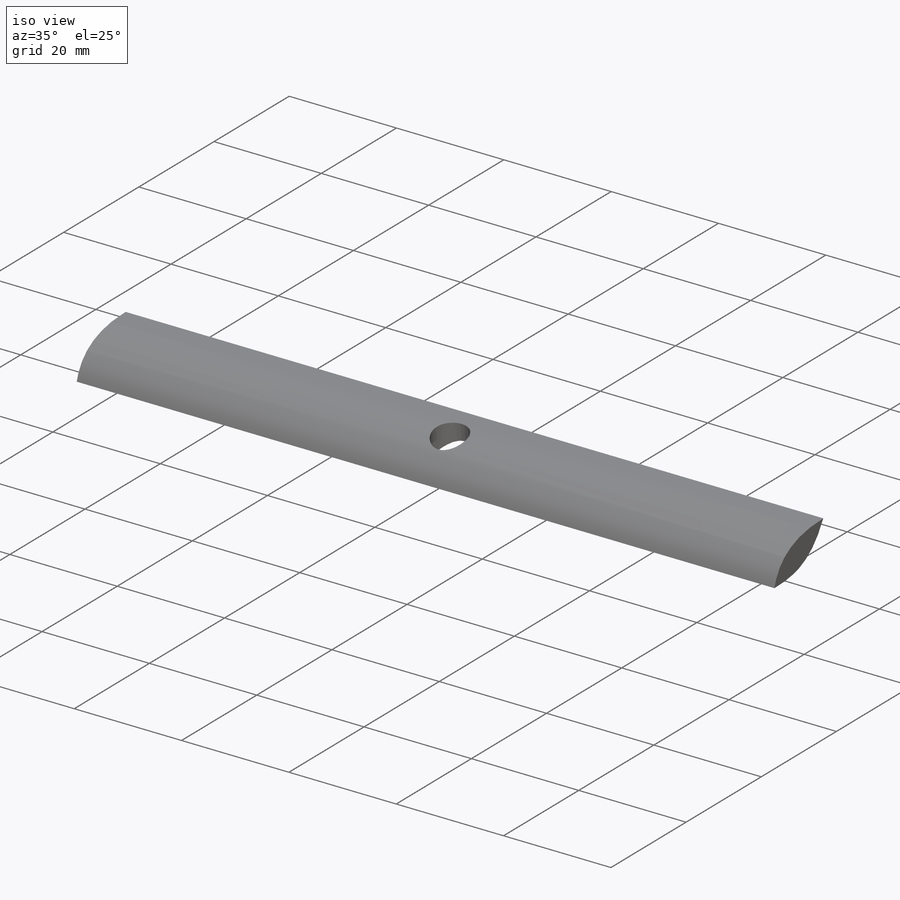
[diagram: iso view]
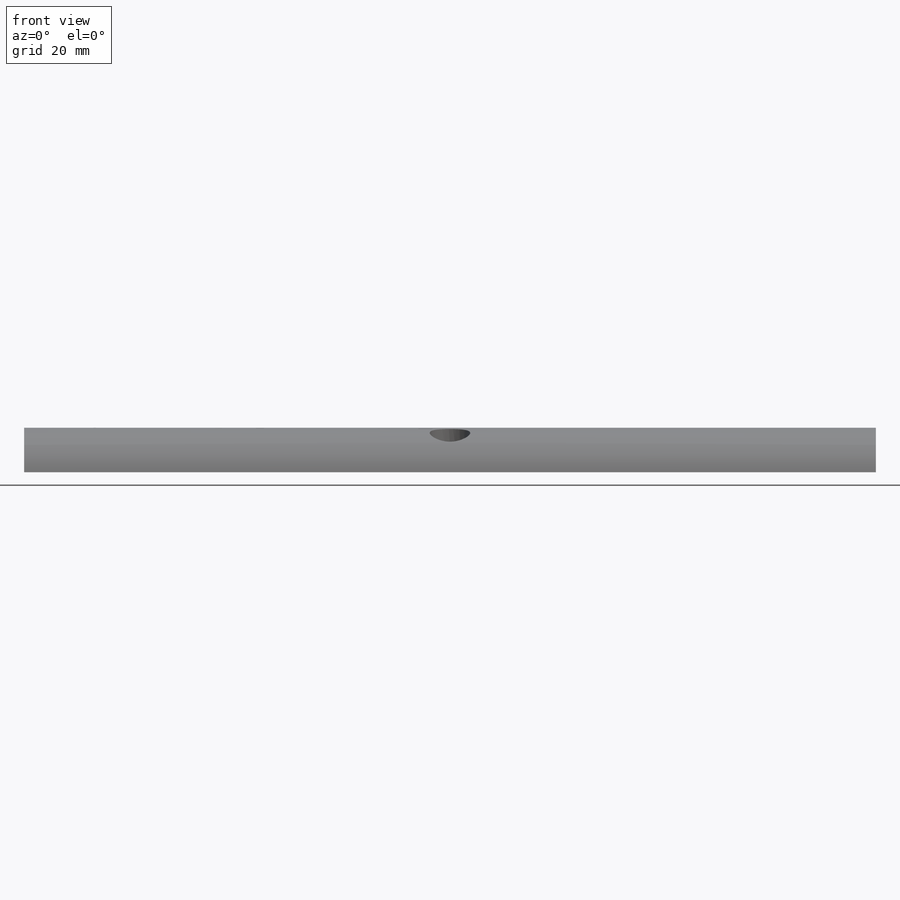
[diagram: front view]
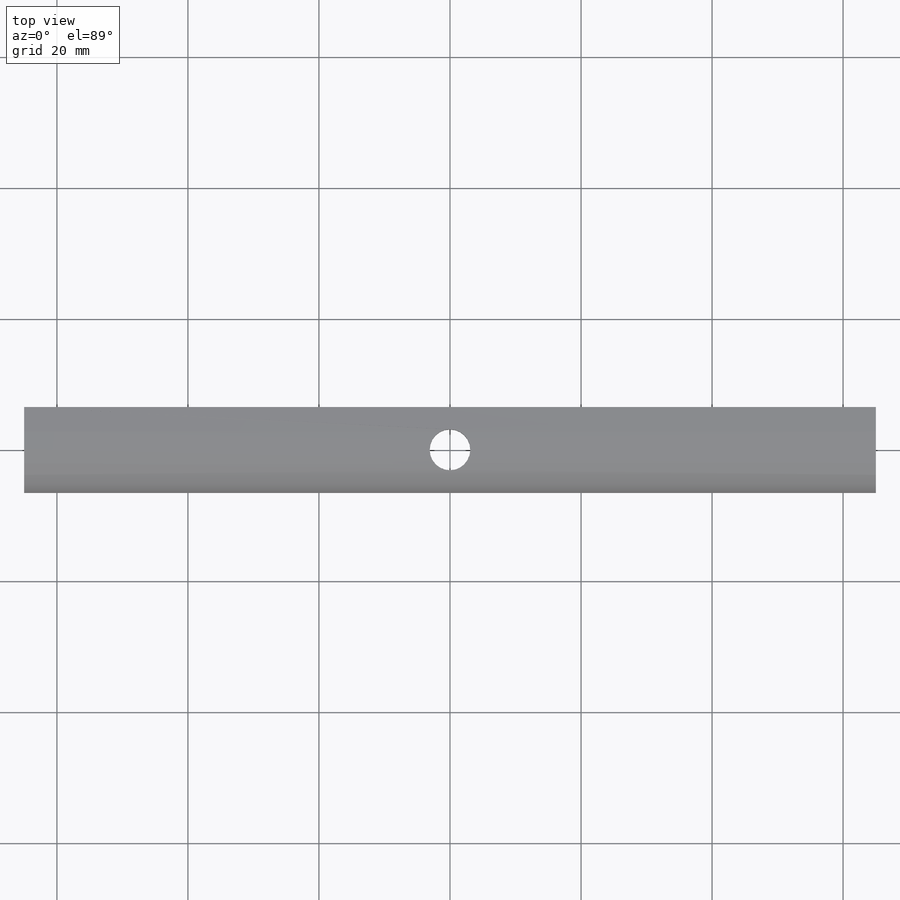
[diagram: top view]
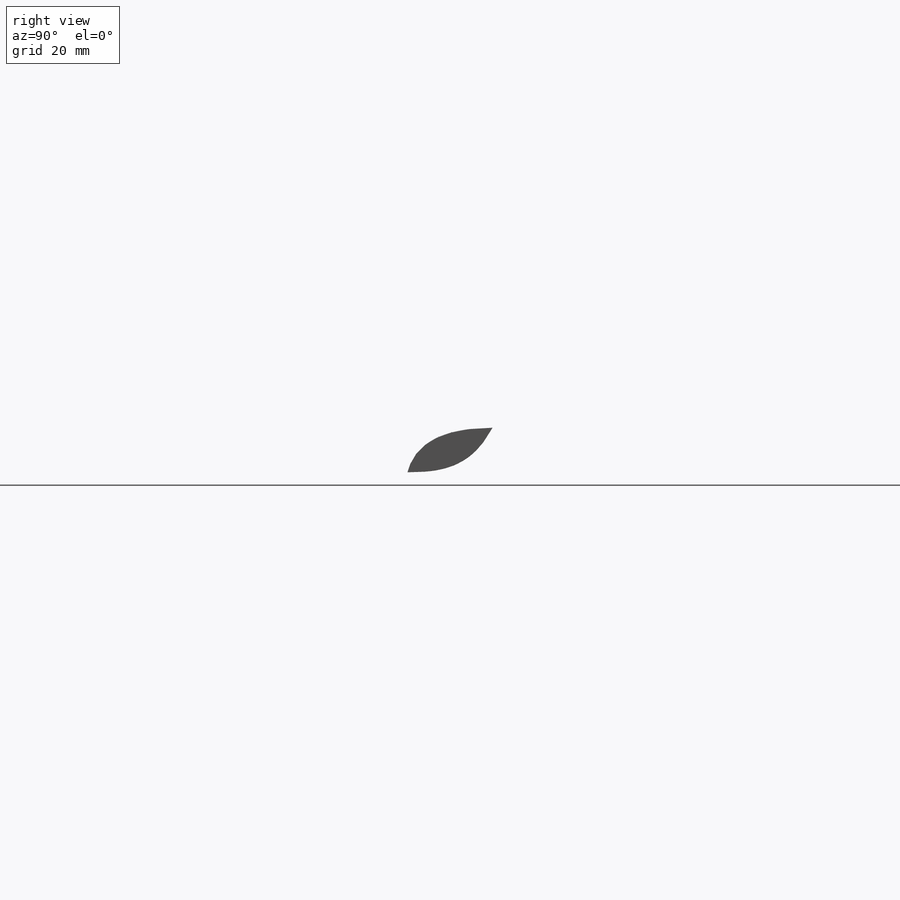
[diagram: right view]
SOLIDWORKS PART (.sldprt)
format: sldprt  version: not decoded by parser v0  size: 181,248 bytes
history: native  units: mm
features: sketch x5, plane x3, cut_extrude x3, extrude x2, material x1 (+13 scaffold rows collapsed)
feature tree (27):
  scaffold x13  (default folders/planes/origin — collapsed)
  material  "Matériau <non spécifié>"
  plane  "Plan de face"
  plane  "Plan de dessus"
  plane  "Plan de droite"
  sketch  "Esquisse1"  dims[D1=~11.888481mm]
  extrude  "Boss.-Extru.1"  Depth=6.8mm
  sketch  "Esquisse4"  dims[D1=130.0mm D2=13.0mm D3=65.0mm D4=6.5mm]
  extrude  "Boss.-Extru.4"  Depth=6.8mm
  sketch  "Esquisse2"  dims[c1.D1=6.2mm c1.D2=6.2mm c2.D1=6.2mm c2.D2=69.0mm c3.D1=61.0mm c3.D2=69.0mm]
  cut_extrude  "Enlèv. mat.-Extru.1"  Depth=3.9mm
  sketch  "Esquisse3"  dims[D1=8.0mm]
  cut_extrude  "Enlèv. mat.-Extru.2"  Depth=3.9mm
  sketch  "Esquisse5"
  cut_extrude  "Enlèv. mat.-Extru.3"  Depth=150mm
decode coverage: 9 of 10 modeling features carry decoded parameters
note: ~ marks probable driven/reference dimensions
note: suppression state not decoded; provenance and decode notes live in map.json
